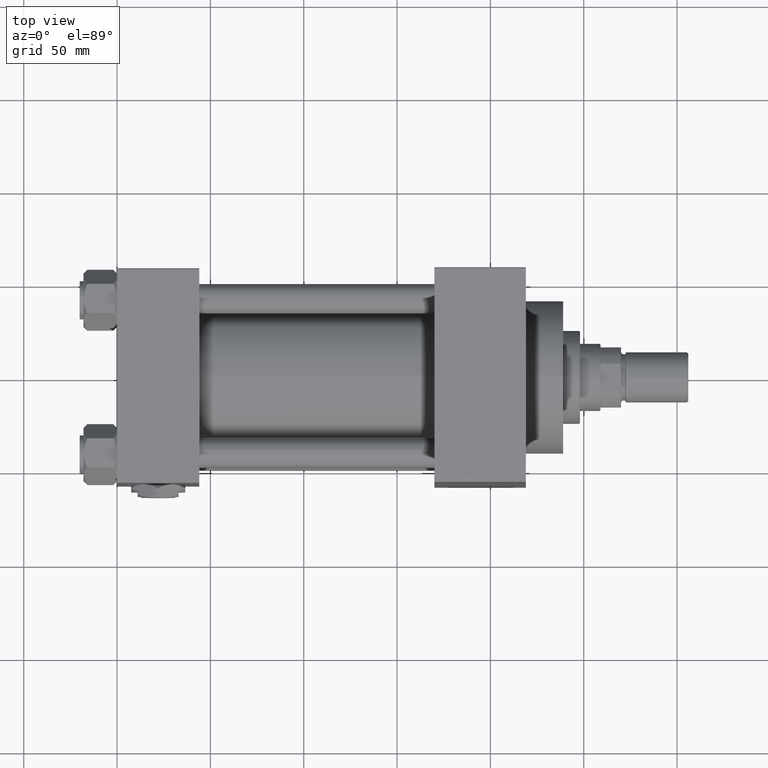
[diagram: clean part render]
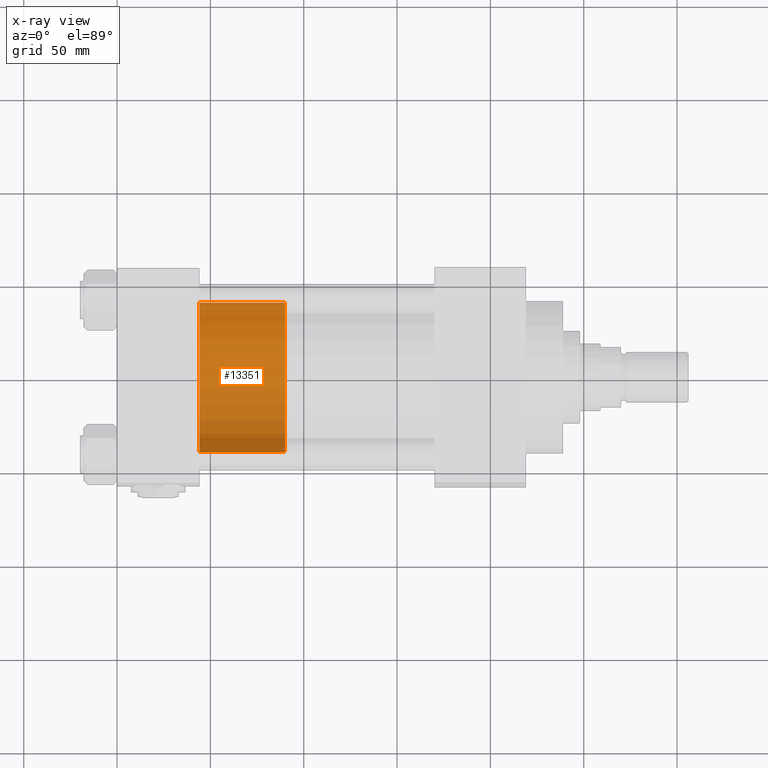
[diagram: x-ray — body ghosted, one internal face saturated and labeled with its STEP entity id]
A machine part, top view, then the same camera in x-ray: the body is ghosted and one INTERNAL B-rep face — a face not visible from any outside direction — is saturated and labeled: STEP entity #13351.
In plain terms, the highlighted cylindrical surface (partial cylindrical patch) has radius 40 mm, axis along (-1, 0, 0).
Its self-contained STEP definition (entity closure, byte-faithful):
#588 = DIRECTION ( 'NONE',  ( -0.000000000000000000, -0.000000000000000000, -1.000000000000000000 ) ) ;
#1286 = ORIENTED_EDGE ( 'NONE', *, *, #9168, .F. ) ;
#1862 = CARTESIAN_POINT ( 'NONE',  ( 0.000000000000000000, 0.000000000000000000, 46.00000000000000000 ) ) ;
#2620 = EDGE_CURVE ( 'NONE', #13426, #5402, #23249, .T. ) ;
#3011 = EDGE_LOOP ( 'NONE', ( #1286, #36065, #39148, #19280 ) ) ;
#3504 = EDGE_CURVE ( 'NONE', #48449, #49967, #8174, .T. ) ;
#5402 = VERTEX_POINT ( 'NONE', #40031 ) ;
#5903 = CYLINDRICAL_SURFACE ( 'NONE', #42927, 40.00000000000000000 ) ;
#8117 = AXIS2_PLACEMENT_3D ( 'NONE', #16605, #47387, #9282 ) ;
#8174 = LINE ( 'NONE', #20040, #40137 ) ;
#9168 = EDGE_CURVE ( 'NONE', #13426, #48449, #38720, .T. ) ;
#9282 = DIRECTION ( 'NONE',  ( 1.000000000000000000, 0.000000000000000000, 0.000000000000000000 ) ) ;
#10009 = CARTESIAN_POINT ( 'NONE',  ( 0.000000000000000000, 0.000000000000000000, 0.000000000000000000 ) ) ;
#11288 = AXIS2_PLACEMENT_3D ( 'NONE', #10009, #16831, #32201 ) ;
#11901 = CARTESIAN_POINT ( 'NONE',  ( 40.00000000000000000, 4.898587196589413026E-15, 46.00000000000000000 ) ) ;
#12989 = DIRECTION ( 'NONE',  ( -1.000000000000000000, 0.000000000000000000, 0.000000000000000000 ) ) ;
#13351 = ADVANCED_FACE ( 'NONE', ( #36174 ), #5903, .T. ) ;
#13426 = VERTEX_POINT ( 'NONE', #18999 ) ;
#16133 = CARTESIAN_POINT ( 'NONE',  ( -40.00000000000000000, 0.000000000000000000, 0.000000000000000000 ) ) ;
#16605 = CARTESIAN_POINT ( 'NONE',  ( 0.000000000000000000, 0.000000000000000000, 46.00000000000000000 ) ) ;
#16831 = DIRECTION ( 'NONE',  ( 0.000000000000000000, 0.000000000000000000, 1.000000000000000000 ) ) ;
#18999 = CARTESIAN_POINT ( 'NONE',  ( 40.00000000000000000, 4.898587196589413026E-15, 46.00000000000000000 ) ) ;
#19280 = ORIENTED_EDGE ( 'NONE', *, *, #3504, .F. ) ;
#19976 = DIRECTION ( 'NONE',  ( -0.000000000000000000, -0.000000000000000000, -1.000000000000000000 ) ) ;
#20040 = CARTESIAN_POINT ( 'NONE',  ( -40.00000000000000000, 0.000000000000000000, 46.00000000000000000 ) ) ;
#21054 = DIRECTION ( 'NONE',  ( -0.000000000000000000, -0.000000000000000000, -1.000000000000000000 ) ) ;
#21760 = CIRCLE ( 'NONE', #11288, 40.00000000000000000 ) ;
#23249 = LINE ( 'NONE', #11901, #27990 ) ;
#27990 = VECTOR ( 'NONE', #19976, 1000.000000000000000 ) ;
#32201 = DIRECTION ( 'NONE',  ( 1.000000000000000000, 0.000000000000000000, 0.000000000000000000 ) ) ;
#32737 = CARTESIAN_POINT ( 'NONE',  ( -40.00000000000000000, 0.000000000000000000, 46.00000000000000000 ) ) ;
#36065 = ORIENTED_EDGE ( 'NONE', *, *, #2620, .T. ) ;
#36174 = FACE_OUTER_BOUND ( 'NONE', #3011, .T. ) ;
#38720 = CIRCLE ( 'NONE', #8117, 40.00000000000000000 ) ;
#39148 = ORIENTED_EDGE ( 'NONE', *, *, #45870, .T. ) ;
#40031 = CARTESIAN_POINT ( 'NONE',  ( 40.00000000000000000, 4.898587196589413026E-15, 0.000000000000000000 ) ) ;
#40137 = VECTOR ( 'NONE', #588, 1000.000000000000000 ) ;
#42927 = AXIS2_PLACEMENT_3D ( 'NONE', #1862, #21054, #12989 ) ;
#45870 = EDGE_CURVE ( 'NONE', #5402, #49967, #21760, .T. ) ;
#47387 = DIRECTION ( 'NONE',  ( 0.000000000000000000, 0.000000000000000000, 1.000000000000000000 ) ) ;
#48449 = VERTEX_POINT ( 'NONE', #32737 ) ;
#49967 = VERTEX_POINT ( 'NONE', #16133 ) ;